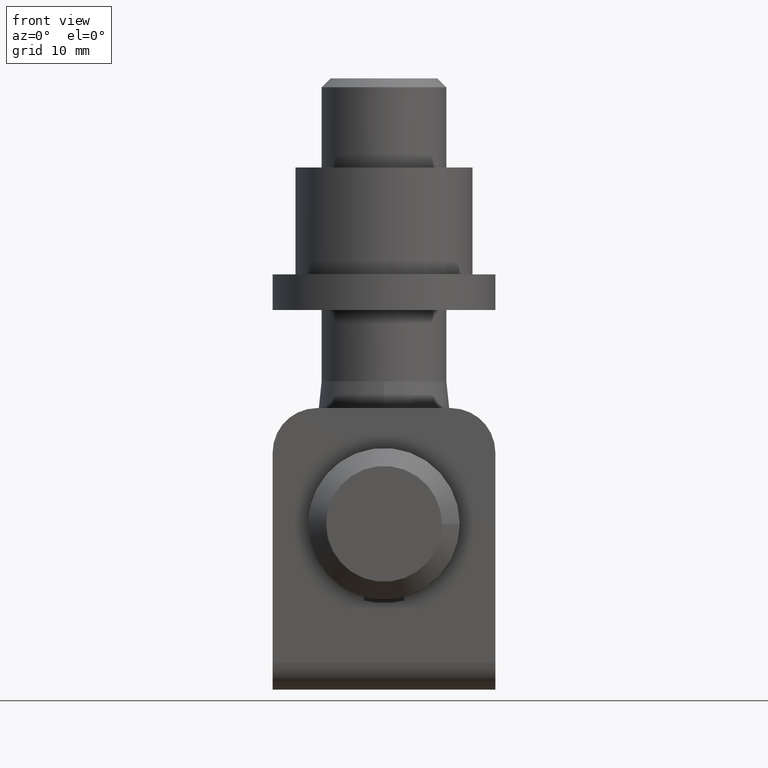
[diagram: clean part render]
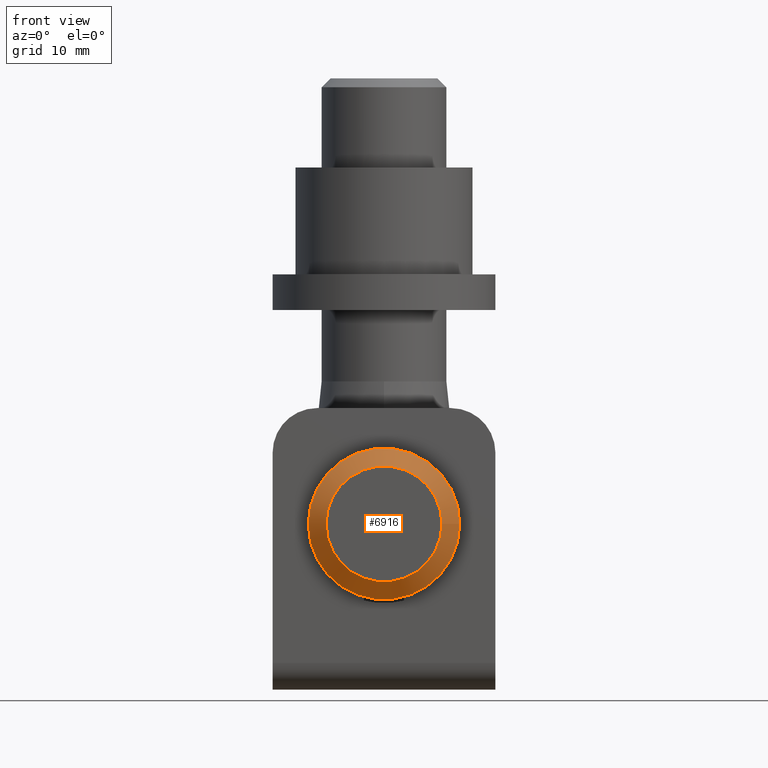
[diagram: same view with one face highlighted and labeled with its STEP entity id]
A machine part, front view. The second image highlights one B-rep face of the part: STEP entity #6916.
In plain terms, the highlighted conical surface has half-angle 45 deg.
Its self-contained STEP definition (entity closure, byte-faithful):
#452 = DIRECTION ( 'NONE',  ( -7.040273847308480800E-017, 1.000000000000000000, -1.532670195355268700E-046 ) ) ;
#582 = CIRCLE ( 'NONE', #7420, 6.499999999999993800 ) ;
#1460 = DIRECTION ( 'NONE',  ( -1.000000000000000000, -7.040273847308470900E-017, 0.0000000000000000000 ) ) ;
#2315 = CARTESIAN_POINT ( 'NONE',  ( -1.408054769461691200E-016, 1.999999999999998200, 0.0000000000000000000 ) ) ;
#3167 = VERTEX_POINT ( 'NONE', #6605 ) ;
#3333 = DIRECTION ( 'NONE',  ( -1.000000000000000000, -5.102127870520020600E-017, 0.0000000000000000000 ) ) ;
#4669 = AXIS2_PLACEMENT_3D ( 'NONE', #10383, #452, #7282 ) ;
#5083 = EDGE_LOOP ( 'NONE', ( #10276 ) ) ;
#5258 = CIRCLE ( 'NONE', #4669, 8.500000000000000000 ) ;
#6159 = ORIENTED_EDGE ( 'NONE', *, *, #9130, .F. ) ;
#6311 = DIRECTION ( 'NONE',  ( -7.040273847308480800E-017, 1.000000000000000000, -1.532670195355268700E-046 ) ) ;
#6605 = CARTESIAN_POINT ( 'NONE',  ( -8.500000000000000000, 1.999999999999997800, 0.0000000000000000000 ) ) ;
#6916 = ADVANCED_FACE ( 'NONE', ( #11926, #10949 ), #11755, .T. ) ;
#7282 = DIRECTION ( 'NONE',  ( -1.000000000000000000, -5.102127870520020600E-017, 0.0000000000000000000 ) ) ;
#7388 = CARTESIAN_POINT ( 'NONE',  ( 0.0000000000000000000, 0.0000000000000000000, 0.0000000000000000000 ) ) ;
#7420 = AXIS2_PLACEMENT_3D ( 'NONE', #7388, #12423, #1460 ) ;
#8659 = AXIS2_PLACEMENT_3D ( 'NONE', #2315, #6311, #3333 ) ;
#9130 = EDGE_CURVE ( 'NONE', #12609, #12609, #582, .T. ) ;
#9703 = EDGE_LOOP ( 'NONE', ( #6159 ) ) ;
#10276 = ORIENTED_EDGE ( 'NONE', *, *, #11061, .F. ) ;
#10383 = CARTESIAN_POINT ( 'NONE',  ( -1.408054769461691200E-016, 1.999999999999998200, 0.0000000000000000000 ) ) ;
#10495 = CARTESIAN_POINT ( 'NONE',  ( -6.499999999999993800, -4.576178000750501900E-016, 0.0000000000000000000 ) ) ;
#10949 = FACE_OUTER_BOUND ( 'NONE', #5083, .T. ) ;
#11061 = EDGE_CURVE ( 'NONE', #3167, #3167, #5258, .T. ) ;
#11755 = CONICAL_SURFACE ( 'NONE', #8659, 8.500000000000000000, 0.7853981633974502800 ) ;
#11926 = FACE_BOUND ( 'NONE', #9703, .T. ) ;
#12423 = DIRECTION ( 'NONE',  ( 7.040273847308470900E-017, -1.000000000000000000, -0.0000000000000000000 ) ) ;
#12609 = VERTEX_POINT ( 'NONE', #10495 ) ;